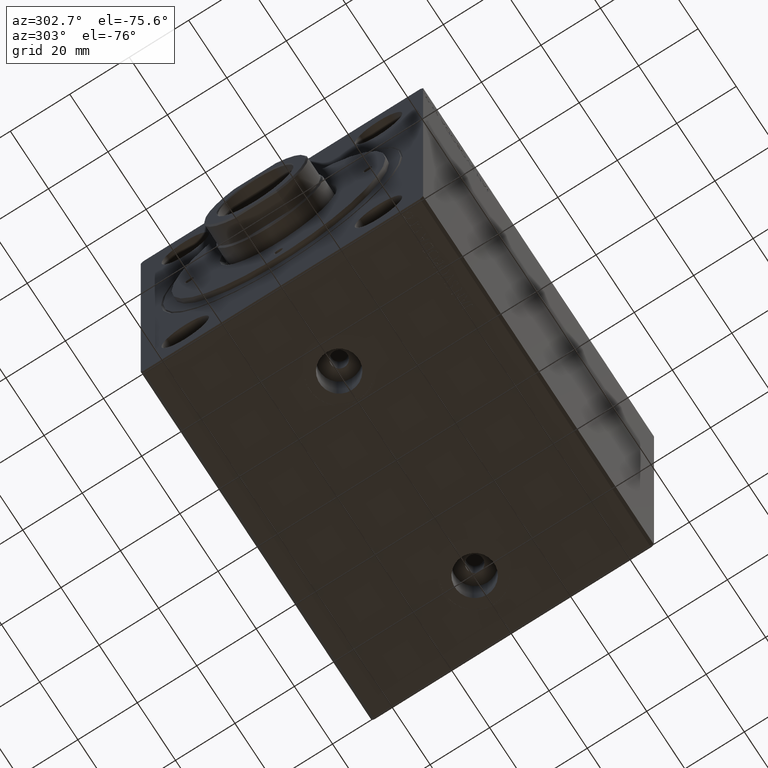
[diagram: clean part render]
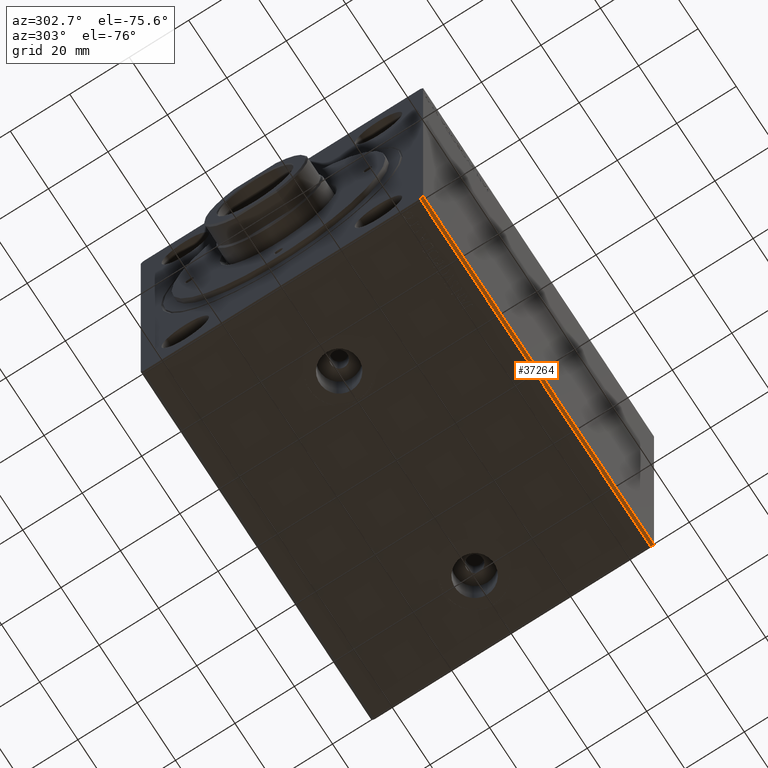
[diagram: same view with one face highlighted and labeled with its STEP entity id]
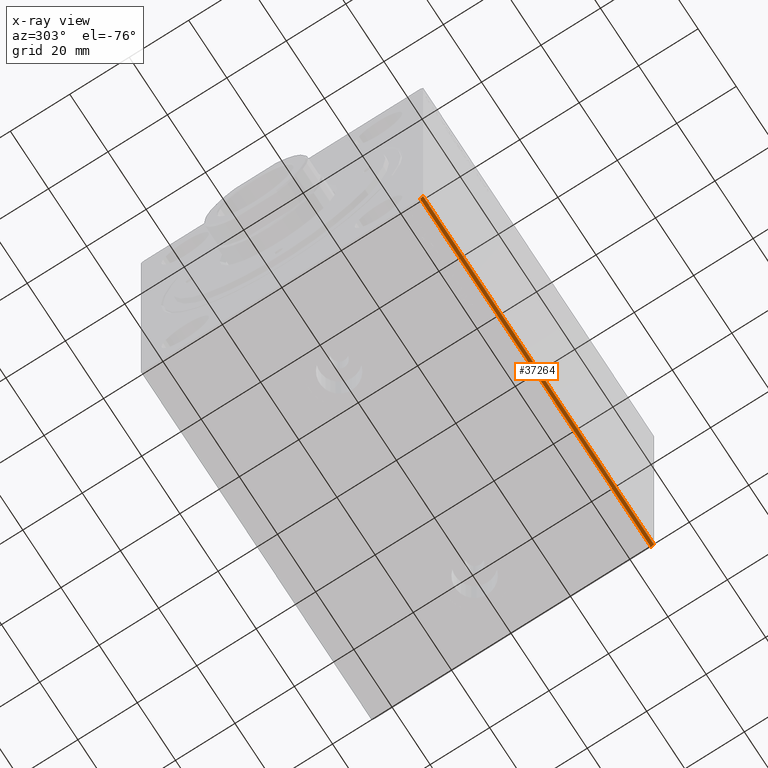
[diagram: x-ray of the same camera — body ghosted, the highlighted face saturated]
A machine part, auxiliary view. The second image highlights one B-rep face of the part: STEP entity #37264.
The next image is the same camera in x-ray: the body ghosted, the highlighted face saturated — about 0% of this face is hidden behind the body in this view.
In plain terms, the highlighted planar face has unit normal (0, 0.7071, 0.7071).
Its self-contained STEP definition (entity closure, byte-faithful):
#14 = ORIENTED_EDGE ( 'NONE', *, *, #30104, .F. ) ;
#1771 = CARTESIAN_POINT ( 'NONE',  ( 121.0000000000000000, -46.50000000000000000, -62.50000000000001421 ) ) ;
#2710 = DIRECTION ( 'NONE',  ( -0.000000000000000000, 0.7071067811865500152, 0.7071067811865451302 ) ) ;
#4095 = VECTOR ( 'NONE', #24833, 1000.000000000000000 ) ;
#4125 = ORIENTED_EDGE ( 'NONE', *, *, #9878, .T. ) ;
#4140 = CARTESIAN_POINT ( 'NONE',  ( 0.000000000000000000, -47.49999999999999289, -61.50000000000001421 ) ) ;
#6433 = ORIENTED_EDGE ( 'NONE', *, *, #23375, .T. ) ;
#6531 = CARTESIAN_POINT ( 'NONE',  ( 121.0000000000000000, -47.49999999999999289, -61.50000000000001421 ) ) ;
#6591 = EDGE_LOOP ( 'NONE', ( #4125, #32619, #14, #6433 ) ) ;
#7098 = VERTEX_POINT ( 'NONE', #1771 ) ;
#8407 = LINE ( 'NONE', #21940, #4095 ) ;
#9392 = DIRECTION ( 'NONE',  ( 0.000000000000000000, -0.7071067811865451302, 0.7071067811865500152 ) ) ;
#9878 = EDGE_CURVE ( 'NONE', #17736, #25885, #24355, .T. ) ;
#10980 = CARTESIAN_POINT ( 'NONE',  ( 0.000000000000000000, -47.49999999999999289, -61.50000000000001421 ) ) ;
#14288 = CARTESIAN_POINT ( 'NONE',  ( 121.0000000000000000, -47.49999999999999289, -61.50000000000001421 ) ) ;
#14995 = PLANE ( 'NONE',  #15947 ) ;
#15947 = AXIS2_PLACEMENT_3D ( 'NONE', #25229, #2710, #9392 ) ;
#16713 = VECTOR ( 'NONE', #38181, 1000.000000000000000 ) ;
#17736 = VERTEX_POINT ( 'NONE', #10980 ) ;
#17845 = DIRECTION ( 'NONE',  ( 0.000000000000000000, 0.7071067811865451302, -0.7071067811865500152 ) ) ;
#18630 = VECTOR ( 'NONE', #17845, 1000.000000000000114 ) ;
#21032 = DIRECTION ( 'NONE',  ( 0.000000000000000000, 0.7071067811865451302, -0.7071067811865500152 ) ) ;
#21940 = CARTESIAN_POINT ( 'NONE',  ( 121.0000000000000000, -46.50000000000000000, -62.50000000000001421 ) ) ;
#22301 = EDGE_CURVE ( 'NONE', #7098, #25885, #8407, .T. ) ;
#23375 = EDGE_CURVE ( 'NONE', #25479, #17736, #41300, .T. ) ;
#24355 = LINE ( 'NONE', #4140, #40771 ) ;
#24833 = DIRECTION ( 'NONE',  ( -1.000000000000000000, -0.000000000000000000, -0.000000000000000000 ) ) ;
#25229 = CARTESIAN_POINT ( 'NONE',  ( 121.0000000000000000, -47.49999999999999289, -61.50000000000001421 ) ) ;
#25479 = VERTEX_POINT ( 'NONE', #6531 ) ;
#25885 = VERTEX_POINT ( 'NONE', #27073 ) ;
#27073 = CARTESIAN_POINT ( 'NONE',  ( 0.000000000000000000, -46.50000000000000000, -62.50000000000001421 ) ) ;
#30104 = EDGE_CURVE ( 'NONE', #25479, #7098, #37663, .T. ) ;
#32619 = ORIENTED_EDGE ( 'NONE', *, *, #22301, .F. ) ;
#37264 = ADVANCED_FACE ( 'NONE', ( #38602 ), #14995, .F. ) ;
#37663 = LINE ( 'NONE', #14288, #18630 ) ;
#37961 = CARTESIAN_POINT ( 'NONE',  ( 121.0000000000000000, -47.49999999999999289, -61.50000000000001421 ) ) ;
#38181 = DIRECTION ( 'NONE',  ( -1.000000000000000000, -0.000000000000000000, -0.000000000000000000 ) ) ;
#38602 = FACE_OUTER_BOUND ( 'NONE', #6591, .T. ) ;
#40771 = VECTOR ( 'NONE', #21032, 1000.000000000000114 ) ;
#41300 = LINE ( 'NONE', #37961, #16713 ) ;